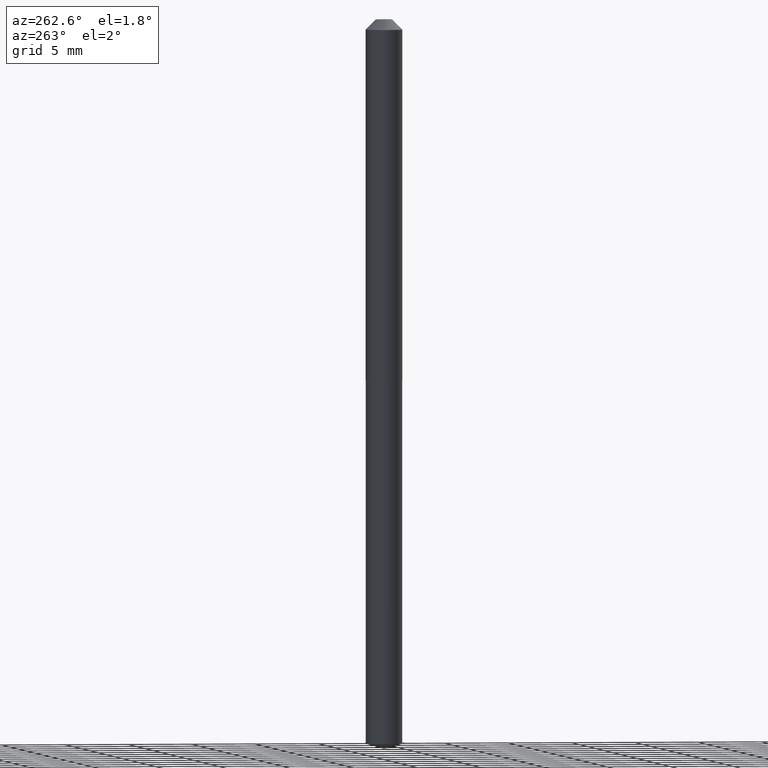
[diagram: clean part render]
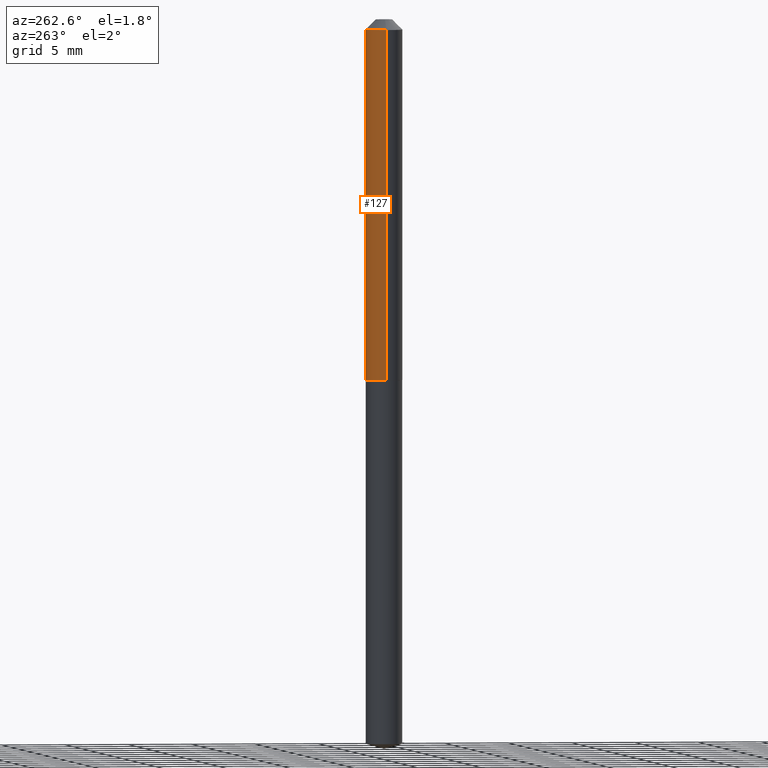
[diagram: same view with one face highlighted and labeled with its STEP entity id]
A machine part, auxiliary view. The second image highlights one B-rep face of the part: STEP entity #127.
In plain terms, the highlighted cylindrical surface (edge-blend (fillet) strip) has radius 1.4351 mm, axis along (-0, 0, 1).
Its self-contained STEP definition (entity closure, byte-faithful):
#3 = FACE_OUTER_BOUND ( 'NONE', #337, .T. ) ;
#9 = VECTOR ( 'NONE', #56, 39.37007874015748143 ) ;
#30 = ORIENTED_EDGE ( 'NONE', *, *, #234, .T. ) ;
#44 = CARTESIAN_POINT ( 'NONE',  ( 0.05650000000000006406, -3.945373912892745484E-16, 2.755039878324706638E-30 ) ) ;
#51 = ORIENTED_EDGE ( 'NONE', *, *, #158, .T. ) ;
#56 = DIRECTION ( 'NONE',  ( -2.445468806185136877E-29, 3.491481338843145188E-15, 1.000000000000000000 ) ) ;
#64 = DIRECTION ( 'NONE',  ( -2.445468806185136877E-29, 3.491481338843145188E-15, 1.000000000000000000 ) ) ;
#72 = ORIENTED_EDGE ( 'NONE', *, *, #349, .F. ) ;
#76 = CARTESIAN_POINT ( 'NONE',  ( 2.720584046880963679E-29, -3.884272989462998480E-15, -1.112499999999999600 ) ) ;
#77 = VERTEX_POINT ( 'NONE', #249 ) ;
#99 = VERTEX_POINT ( 'NONE', #281 ) ;
#100 = CYLINDRICAL_SURFACE ( 'NONE', #315, 0.05650000000000006406 ) ;
#111 = CARTESIAN_POINT ( 'NONE',  ( 7.642090019328602662E-31, -1.091087918388490267E-16, -0.03125000000000020817 ) ) ;
#124 = CARTESIAN_POINT ( 'NONE',  ( -0.05650000000000006406, 4.014566457044570602E-16, -2.779198325994025135E-30 ) ) ;
#127 = ADVANCED_FACE ( 'NONE', ( #3 ), #100, .T. ) ;
#138 = VERTEX_POINT ( 'NONE', #156 ) ;
#140 = DIRECTION ( 'NONE',  ( -2.445468806185136597E-29, 3.491481338843145583E-15, 1.000000000000000000 ) ) ;
#156 = CARTESIAN_POINT ( 'NONE',  ( 0.05650000000000013345, -4.278810380752273274E-15, -1.112499999999999600 ) ) ;
#158 = EDGE_CURVE ( 'NONE', #99, #240, #343, .T. ) ;
#168 = ORIENTED_EDGE ( 'NONE', *, *, #271, .F. ) ;
#195 = CARTESIAN_POINT ( 'NONE',  ( -0.05650000000000000161, -1.595234244946465645E-15, -0.03125000000000020817 ) ) ;
#212 = DIRECTION ( 'NONE',  ( 1.000000000000000000, -6.982962677686267499E-15, 4.876176775795935232E-29 ) ) ;
#223 = CIRCLE ( 'NONE', #359, 0.05650000000000000161 ) ;
#233 = DIRECTION ( 'NONE',  ( 1.000000000000000000, -6.982962677686265922E-15, 0.000000000000000000 ) ) ;
#234 = EDGE_CURVE ( 'NONE', #138, #99, #332, .T. ) ;
#236 = DIRECTION ( 'NONE',  ( 1.000000000000000000, -6.982962677686265133E-15, 0.000000000000000000 ) ) ;
#240 = VERTEX_POINT ( 'NONE', #195 ) ;
#249 = CARTESIAN_POINT ( 'NONE',  ( 0.05650000000000000161, -5.036461831281230081E-16, -0.03125000000000020817 ) ) ;
#250 = CARTESIAN_POINT ( 'NONE',  ( 0.000000000000000000, 0.000000000000000000, 0.000000000000000000 ) ) ;
#271 = EDGE_CURVE ( 'NONE', #77, #240, #223, .T. ) ;
#274 = VECTOR ( 'NONE', #64, 39.37007874015748143 ) ;
#281 = CARTESIAN_POINT ( 'NONE',  ( -0.05650000000000013345, -3.482816343758540729E-15, -1.112499999999999600 ) ) ;
#315 = AXIS2_PLACEMENT_3D ( 'NONE', #250, #371, #212 ) ;
#320 = LINE ( 'NONE', #44, #9 ) ;
#332 = CIRCLE ( 'NONE', #383, 0.05650000000000013345 ) ;
#337 = EDGE_LOOP ( 'NONE', ( #30, #51, #168, #72 ) ) ;
#343 = LINE ( 'NONE', #124, #274 ) ;
#348 = DIRECTION ( 'NONE',  ( -2.445468806185136597E-29, 3.491481338843145583E-15, 1.000000000000000000 ) ) ;
#349 = EDGE_CURVE ( 'NONE', #138, #77, #320, .T. ) ;
#359 = AXIS2_PLACEMENT_3D ( 'NONE', #111, #140, #233 ) ;
#371 = DIRECTION ( 'NONE',  ( -2.445468806185136597E-29, 3.491481338843145583E-15, 1.000000000000000000 ) ) ;
#383 = AXIS2_PLACEMENT_3D ( 'NONE', #76, #348, #236 ) ;